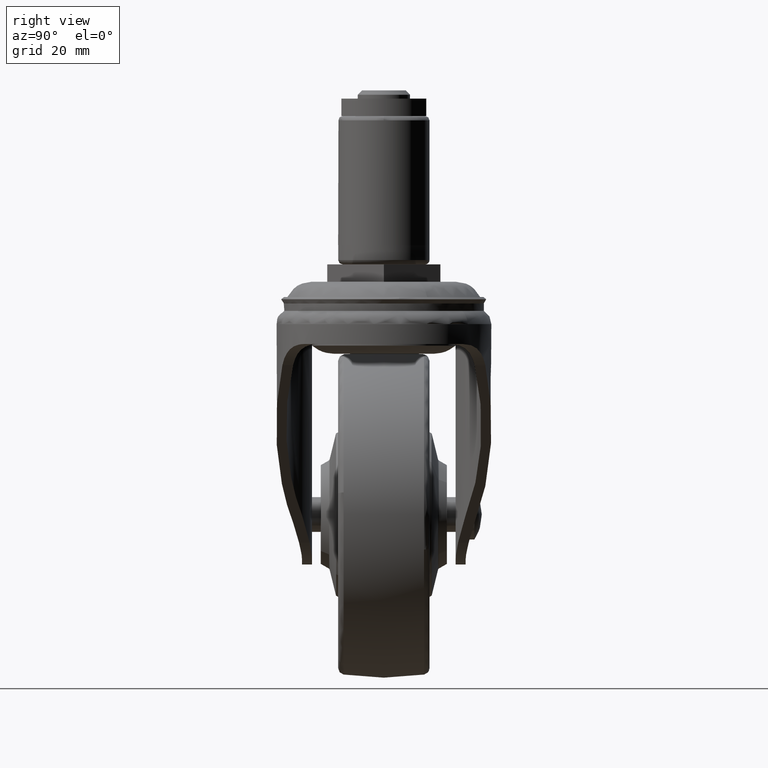
[diagram: clean part render]
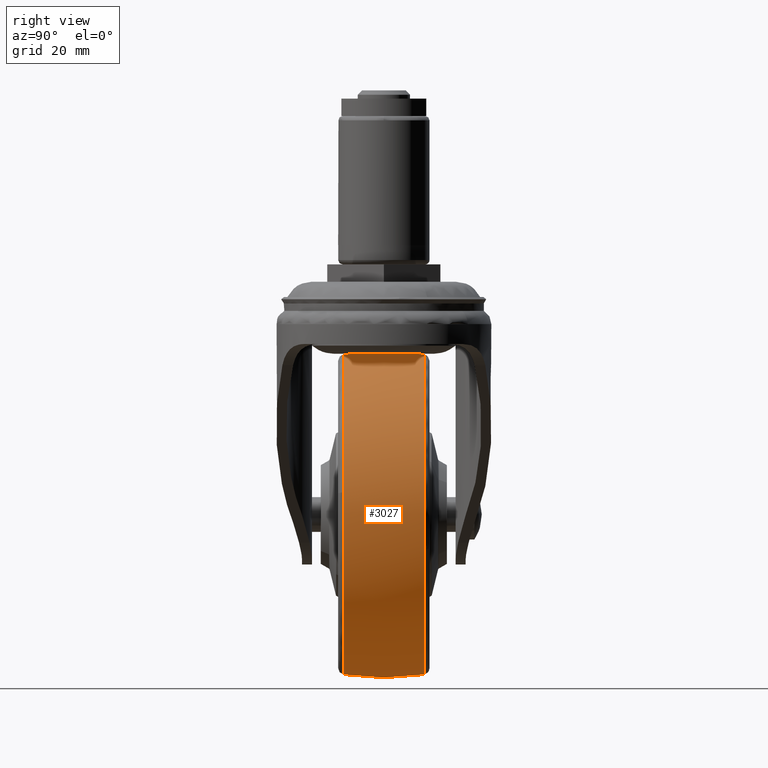
[diagram: same view with one face highlighted and labeled with its STEP entity id]
A machine part, right view. The second image highlights one B-rep face of the part: STEP entity #3027.
In plain terms, the highlighted face is a freeform B-spline surface patch.
Its self-contained STEP definition (entity closure, byte-faithful):
#2131=CARTESIAN_POINT('',(-25.0,9.230738802576987,-20.714632437744690));
#2132=VERTEX_POINT('',#2131);
#2148=CARTESIAN_POINT('',(10.894347438131330,9.230757517157327,-65.549100782697806));
#2149=VERTEX_POINT('',#2148);
#2150=CARTESIAN_POINT('',(10.894347438131330,9.230757517157327,-65.549100782697806));
#2151=CARTESIAN_POINT('',(11.269890144337669,9.230756821413303,-63.874631042021349));
#2152=CARTESIAN_POINT('',(11.798935733296609,9.230755372232428,-60.387977126985241));
#2153=CARTESIAN_POINT('',(11.837217125412581,9.230753153756846,-55.053904648306471));
#2154=CARTESIAN_POINT('',(11.034082735123629,9.230750778103399,-49.345705699720909));
#2155=CARTESIAN_POINT('',(9.426692383933128,9.230748619474015,-44.162911242943807));
#2156=CARTESIAN_POINT('',(7.082430036730425,9.230746584770618,-39.281380990788293));
#2157=CARTESIAN_POINT('',(4.675508722658678,9.230745054389011,-35.612677375403379));
#2158=CARTESIAN_POINT('',(1.633588525755232,9.230743545406812,-31.998276833723480));
#2159=CARTESIAN_POINT('',(-1.695800172316997,9.230742243321350,-28.882609810199131));
#2160=CARTESIAN_POINT('',(-5.777374722620208,9.230741043423823,-26.016011578779921));
#2161=CARTESIAN_POINT('',(-9.660833797860470,9.230740189476432,-23.980294937363212));
#2162=CARTESIAN_POINT('',(-13.423955144103500,9.230739573835598,-22.517000386645861));
#2163=CARTESIAN_POINT('',(-18.393281832847869,9.230738993748702,-21.144604257156480));
#2164=CARTESIAN_POINT('',(-22.340043514192111,9.230738807368528,-20.714209867883760));
#2165=CARTESIAN_POINT('',(-25.0,9.230738802576987,-20.714632437744690));
#2166=B_SPLINE_CURVE_WITH_KNOTS('',3,(#2150,#2151,#2152,#2153,#2154,#2155,#2156,#2157,#2158,#2159,#2160,#2161,#2162,#2163,#2164,#2165),.UNSPECIFIED.,.F.,.U.,(4,1,1,1,1,1,1,1,1,1,1,1,1,4),(0.000000040092502,5.148197585844244,10.553861740033570,15.959521934798090,22.394824686409130,26.770824825621059,32.176496901851237,35.522783241854633,40.928449712298637,45.819263547831092,50.452689315289597,54.056461035528962,57.917627260555513,65.897384638438126),.UNSPECIFIED.);
#2167=EDGE_CURVE('',#2149,#2132,#2166,.T.);
#2224=CARTESIAN_POINT('',(-25.0,9.230769230769241,-94.286014824608401));
#2225=VERTEX_POINT('',#2224);
#2226=CARTESIAN_POINT('',(-25.0,9.230769230769241,-94.286014824608401));
#2227=CARTESIAN_POINT('',(-22.283718620218512,9.230769238891483,-94.286521016585553));
#2228=CARTESIAN_POINT('',(-17.627533338174509,9.230769039136142,-93.767812294298110));
#2229=CARTESIAN_POINT('',(-11.245102315341811,9.230768243947543,-91.789028585724935));
#2230=CARTESIAN_POINT('',(-5.899806253236454,9.230767166301915,-89.130774744798941));
#2231=CARTESIAN_POINT('',(-1.374350978914402,9.230765836678135,-85.865623533622511));
#2232=CARTESIAN_POINT('',(2.486818183613340,9.230764308022854,-82.121216772231648));
#2233=CARTESIAN_POINT('',(5.203100864277729,9.230762887309552,-78.647390955648362));
#2234=CARTESIAN_POINT('',(7.359855120820316,9.230761438969589,-75.110352669078267));
#2235=CARTESIAN_POINT('',(9.342654356531476,9.230759768157368,-71.033586856754610));
#2236=CARTESIAN_POINT('',(10.413425354807110,9.230758398160761,-67.694740905863071));
#2237=CARTESIAN_POINT('',(10.894347438131330,9.230757517157327,-65.549100782697806));
#2238=B_SPLINE_CURVE_WITH_KNOTS('',3,(#2226,#2227,#2228,#2229,#2230,#2231,#2232,#2233,#2234,#2235,#2236,#2237),.UNSPECIFIED.,.F.,.U.,(4,1,1,1,1,1,1,1,1,4),(0.000000047919904,8.148728203206545,13.969258487616830,19.983811265025551,25.998320696372090,30.654731978818582,36.087241936118090,39.191527838840457,43.071870388966779,49.668462225115412),.UNSPECIFIED.);
#2239=EDGE_CURVE('',#2225,#2149,#2238,.T.);
#2241=CARTESIAN_POINT('',(-61.539658247174529,9.230744661824314,-53.252908088126937));
#2242=VERTEX_POINT('',#2241);
#2243=CARTESIAN_POINT('',(-61.539658247174529,9.230744661824314,-53.252908088126937));
#2244=CARTESIAN_POINT('',(-61.744946089440980,9.230745190284553,-55.018182517592400));
#2245=CARTESIAN_POINT('',(-61.884889819789549,9.230746229554304,-58.254880792590079));
#2246=CARTESIAN_POINT('',(-61.470031066895167,9.230747914178791,-62.930038187830966));
#2247=CARTESIAN_POINT('',(-60.455163371524108,9.230749829238745,-67.760928657419782));
#2248=CARTESIAN_POINT('',(-58.931864727367220,9.230751681365906,-71.950612904566242));
#2249=CARTESIAN_POINT('',(-56.952238955035611,9.230753569437971,-75.841579625838122));
#2250=CARTESIAN_POINT('',(-54.608992513770687,9.230755497683184,-79.529041696271321));
#2251=CARTESIAN_POINT('',(-51.196859726420989,9.230757852970362,-83.543441044741769));
#2252=CARTESIAN_POINT('',(-47.504907892624203,9.230760006720759,-86.705165183293957));
#2253=CARTESIAN_POINT('',(-43.884420686933623,9.230761897995537,-89.144545799437680));
#2254=CARTESIAN_POINT('',(-40.600731771041580,9.230763460524676,-90.899421307800367));
#2255=CARTESIAN_POINT('',(-36.242294536153267,9.230765335984753,-92.634307784918306));
#2256=CARTESIAN_POINT('',(-31.139302728015661,9.230767289249625,-93.939159994999429));
#2257=CARTESIAN_POINT('',(-27.100312168093431,9.230768606241922,-94.286187401243097));
#2258=CARTESIAN_POINT('',(-25.0,9.230769230769241,-94.286014824608401));
#2259=B_SPLINE_CURVE_WITH_KNOTS('',3,(#2243,#2244,#2245,#2246,#2247,#2248,#2249,#2250,#2251,#2252,#2253,#2254,#2255,#2256,#2257,#2258),.UNSPECIFIED.,.F.,.U.,(4,1,1,1,1,1,1,1,1,1,1,1,1,4),(0.000000053090453,5.331514319707694,9.693709210285931,14.055900528981960,20.114487270160289,23.022606630096579,27.142471634102169,33.200972064728802,38.774901304281762,41.683024689837332,46.287544723096190,49.922695526750402,55.738935545576673,62.039851829810097),.UNSPECIFIED.);
#2260=EDGE_CURVE('',#2242,#2225,#2259,.T.);
#2310=CARTESIAN_POINT('',(-11.542712536585171,-9.230769231475078,-91.736101388033063));
#2311=VERTEX_POINT('',#2310);
#2312=CARTESIAN_POINT('',(11.434805799117660,-9.230769222844193,-52.431615243701401));
#2313=VERTEX_POINT('',#2312);
#2314=CARTESIAN_POINT('',(-11.542712536585171,-9.230769231475078,-91.736101388033063));
#2315=CARTESIAN_POINT('',(-8.984456084173360,-9.230769231867772,-90.731069051682539));
#2316=CARTESIAN_POINT('',(-4.663789305783636,-9.230769232294493,-88.444351552620176));
#2317=CARTESIAN_POINT('',(0.405192347621890,-9.230769232210148,-84.305593660491553));
#2318=CARTESIAN_POINT('',(4.431746245468909,-9.230769231665446,-79.827266871739141));
#2319=CARTESIAN_POINT('',(7.321611585604882,-9.230769230767459,-75.351762392206936));
#2320=CARTESIAN_POINT('',(9.300237762128424,-9.230769229626667,-70.976437762101398));
#2321=CARTESIAN_POINT('',(10.550186859996209,-9.230769228503503,-67.211085356483167));
#2322=CARTESIAN_POINT('',(11.484436674725769,-9.230769227086951,-62.958767097509003));
#2323=CARTESIAN_POINT('',(11.918920109700061,-9.230769225196564,-57.914299077569723));
#2324=CARTESIAN_POINT('',(11.690328792021200,-9.230769223660818,-54.267597146898382));
#2325=CARTESIAN_POINT('',(11.434805799117660,-9.230769222844193,-52.431615243701401));
#2326=B_SPLINE_CURVE_WITH_KNOTS('',3,(#2314,#2315,#2316,#2317,#2318,#2319,#2320,#2321,#2322,#2323,#2324,#2325),.UNSPECIFIED.,.F.,.U.,(4,1,1,1,1,1,1,1,1,4),(0.000000045919393,8.245683583577844,14.573794408622961,19.559577932688789,26.271168637955238,30.489872283566910,33.941575418991903,38.160314295004888,43.529626946522463,49.090651230290277),.UNSPECIFIED.);
#2327=EDGE_CURVE('',#2311,#2313,#2326,.T.);
#2409=CARTESIAN_POINT('',(-25.0,-9.230769230769241,-94.286014824608401));
#2410=VERTEX_POINT('',#2409);
#2411=CARTESIAN_POINT('',(-25.0,-9.230769230769241,-94.286014824608401));
#2412=CARTESIAN_POINT('',(-23.134336403735741,-9.230769230769203,-94.286139146662109));
#2413=CARTESIAN_POINT('',(-20.264146277764421,-9.230769230829811,-94.067153206247838));
#2414=CARTESIAN_POINT('',(-15.753349299927461,-9.230769231073998,-93.185065595045486));
#2415=CARTESIAN_POINT('',(-13.145451189090830,-9.230769231300672,-92.366190146516701));
#2416=CARTESIAN_POINT('',(-11.542712536585171,-9.230769231475078,-91.736101388033063));
#2417=B_SPLINE_CURVE_WITH_KNOTS('',3,(#2411,#2412,#2413,#2414,#2415,#2416),.UNSPECIFIED.,.F.,.U.,(4,1,1,4),(3.728116E-009,5.596970303587813,8.610710843504936,13.777137484982189),.UNSPECIFIED.);
#2418=EDGE_CURVE('',#2410,#2311,#2417,.T.);
#2490=CARTESIAN_POINT('',(-25.0,-9.230768354899340,-20.714637039019070));
#2491=VERTEX_POINT('',#2490);
#2492=CARTESIAN_POINT('',(11.434805799117660,-9.230769222844193,-52.431615243701401));
#2493=CARTESIAN_POINT('',(11.094821819267841,-9.230769214716093,-49.984873799266353));
#2494=CARTESIAN_POINT('',(10.261737145172040,-9.230769194833840,-46.567762291707218));
#2495=CARTESIAN_POINT('',(8.343237159831594,-9.230769149089605,-41.787543976021567));
#2496=CARTESIAN_POINT('',(6.139255044698411,-9.230769096556744,-37.662968840583069));
#2497=CARTESIAN_POINT('',(2.813323135793692,-9.230769017305429,-33.187078620962879));
#2498=CARTESIAN_POINT('',(-0.785990312384498,-9.230768931558099,-29.681413384970060));
#2499=CARTESIAN_POINT('',(-4.397278575110104,-9.230768845536041,-26.941132944383909));
#2500=CARTESIAN_POINT('',(-8.341215123129564,-9.230768751597962,-24.561792873575161));
#2501=CARTESIAN_POINT('',(-13.603865566959620,-9.230768626264291,-22.335889340353521));
#2502=CARTESIAN_POINT('',(-19.373397029812320,-9.230768488872773,-20.988600200128960));
#2503=CARTESIAN_POINT('',(-23.284574767486511,-9.230768395743763,-20.714581851496341));
#2504=CARTESIAN_POINT('',(-25.0,-9.230768354899340,-20.714637039019070));
#2505=B_SPLINE_CURVE_WITH_KNOTS('',3,(#2492,#2493,#2494,#2495,#2496,#2497,#2498,#2499,#2500,#2501,#2502,#2503,#2504),.UNSPECIFIED.,.F.,.U.,(4,1,1,1,1,1,1,1,1,1,4),(0.000000053049405,7.410635223413813,10.498430600194061,15.438869345142120,21.408593855189181,27.172391906882162,30.466000598471560,34.994768313714509,40.964470631141779,47.551720555755963,52.698005119841689),.UNSPECIFIED.);
#2506=EDGE_CURVE('',#2313,#2491,#2505,.T.);
#2508=CARTESIAN_POINT('',(-61.539653784651222,-9.230773243894543,-53.252908239996842));
#2509=VERTEX_POINT('',#2508);
#2526=CARTESIAN_POINT('',(-61.539653784651222,-9.230773243894543,-53.252908239996842));
#2527=CARTESIAN_POINT('',(-61.744928888561880,-9.230773157574536,-55.018182040450363));
#2528=CARTESIAN_POINT('',(-61.905962773573400,-9.230772962359499,-58.740397628466447));
#2529=CARTESIAN_POINT('',(-61.371849489802663,-9.230772668365056,-63.654483094544709));
#2530=CARTESIAN_POINT('',(-60.214720057368623,-9.230772350544964,-68.450564581328777));
#2531=CARTESIAN_POINT('',(-58.764965411563338,-9.230772069141997,-72.318443262149998));
#2532=CARTESIAN_POINT('',(-56.536482151201952,-9.230771725796506,-76.628441365522107));
#2533=CARTESIAN_POINT('',(-53.552275814443462,-9.230771344092982,-80.968684744725962));
#2534=CARTESIAN_POINT('',(-49.768234174942471,-9.230770947575888,-84.868250506561893));
#2535=CARTESIAN_POINT('',(-46.122100172636692,-9.230770616509808,-87.690718953484421));
#2536=CARTESIAN_POINT('',(-42.833362991405018,-9.230770344297470,-89.752529238155631));
#2537=CARTESIAN_POINT('',(-38.907299101313932,-9.230770048927591,-91.671303607110787));
#2538=CARTESIAN_POINT('',(-34.913190076927620,-9.230769782040683,-93.007346562001729));
#2539=CARTESIAN_POINT('',(-30.169919508795228,-9.230769496274782,-94.022355911226697));
#2540=CARTESIAN_POINT('',(-27.100317884807030,-9.230769332779159,-94.286215358217120));
#2541=CARTESIAN_POINT('',(-25.0,-9.230769230769241,-94.286014824608401));
#2542=B_SPLINE_CURVE_WITH_KNOTS('',3,(#2526,#2527,#2528,#2529,#2530,#2531,#2532,#2533,#2534,#2535,#2536,#2537,#2538,#2539,#2540,#2541),.UNSPECIFIED.,.F.,.U.,(4,1,1,1,1,1,1,1,1,1,1,1,1,4),(0.000000053164854,5.331514099191885,11.147772466705410,14.782930775833130,20.114486438028639,23.507316052465679,29.323529618391252,35.866785924006983,39.744253005543698,43.137080453843510,47.499262059058083,52.830812960913121,55.738933239523810,62.039849263056347),.UNSPECIFIED.);
#2543=EDGE_CURVE('',#2509,#2410,#2542,.T.);
#2949=CARTESIAN_POINT('',(-61.387840687560342,-10.163933144343375,-53.270542602484966));
#2950=CARTESIAN_POINT('',(-62.249186561240641,-5.118957251644313,-53.170418319010878));
#2951=CARTESIAN_POINT('',(-62.249186561240641,6.429243E-015,-53.170418319010878));
#2952=CARTESIAN_POINT('',(-62.249186561240634,5.118955146831095,-53.170418319010878));
#2953=CARTESIAN_POINT('',(-61.387841390778142,10.163929025536234,-53.270542520741763));
#2954=CARTESIAN_POINT('',(-61.632854345425592,-10.163933144343373,-55.378337993122379));
#2955=CARTESIAN_POINT('',(-62.499999999999993,-5.118957251644313,-55.328107872862802));
#2956=CARTESIAN_POINT('',(-62.499999999999993,6.429243E-015,-55.328107872862788));
#2957=CARTESIAN_POINT('',(-62.499999999999993,5.118955146831096,-55.328107872862788));
#2958=CARTESIAN_POINT('',(-61.632855053378421,10.163929025536232,-55.378337952113640));
#2959=CARTESIAN_POINT('',(-61.632854345425599,-10.163933144343371,-57.500326000000101));
#2960=CARTESIAN_POINT('',(-62.500000000000000,-5.118957251644312,-57.500326000000094));
#2961=CARTESIAN_POINT('',(-62.500000000000000,6.429243E-015,-57.500326000000094));
#2962=CARTESIAN_POINT('',(-62.500000000000000,5.118955146831095,-57.500326000000094));
#2963=CARTESIAN_POINT('',(-61.632855053378428,10.163929025536234,-57.500326000000094));
#2964=CARTESIAN_POINT('',(-61.632854345425599,-10.163933144343369,-94.133180345425686));
#2965=CARTESIAN_POINT('',(-62.500000000000007,-5.118957251644312,-95.000326000000086));
#2966=CARTESIAN_POINT('',(-62.500000000000000,6.429243E-015,-95.000326000000086));
#2967=CARTESIAN_POINT('',(-62.499999999999993,5.118955146831095,-95.000326000000101));
#2968=CARTESIAN_POINT('',(-61.632855053378414,10.163929025536232,-94.133181053378522));
#2969=CARTESIAN_POINT('',(-25.000000000000004,-10.163933144343371,-94.133180345425686));
#2970=CARTESIAN_POINT('',(-25.000000000000004,-5.118957251644312,-95.000326000000072));
#2971=CARTESIAN_POINT('',(-25.0,6.429243E-015,-95.000326000000086));
#2972=CARTESIAN_POINT('',(-25.0,5.118955146831095,-95.000326000000101));
#2973=CARTESIAN_POINT('',(-24.999999999999996,10.163929025536234,-94.133181053378522));
#2974=CARTESIAN_POINT('',(11.632854345425583,-10.163933144343369,-94.133180345425686));
#2975=CARTESIAN_POINT('',(12.499999999999995,-5.118957251644312,-95.000326000000086));
#2976=CARTESIAN_POINT('',(12.499999999999993,6.429243E-015,-95.000326000000086));
#2977=CARTESIAN_POINT('',(12.499999999999991,5.118955146831095,-95.000326000000101));
#2978=CARTESIAN_POINT('',(11.632855053378417,10.163929025536232,-94.133181053378522));
#2979=CARTESIAN_POINT('',(11.632854345425585,-10.163933144343371,-57.500326000000101));
#2980=CARTESIAN_POINT('',(12.499999999999993,-5.118957251644312,-57.500326000000094));
#2981=CARTESIAN_POINT('',(12.500000000000000,6.429243E-015,-57.500326000000094));
#2982=CARTESIAN_POINT('',(12.500000000000000,5.118955146831095,-57.500326000000094));
#2983=CARTESIAN_POINT('',(11.632855053378417,10.163929025536234,-57.500326000000094));
#2984=CARTESIAN_POINT('',(11.632854345425585,-10.163933144343369,-20.867471654574516));
#2985=CARTESIAN_POINT('',(12.499999999999995,-5.118957251644312,-20.000326000000101));
#2986=CARTESIAN_POINT('',(12.499999999999993,6.429243E-015,-20.000326000000101));
#2987=CARTESIAN_POINT('',(12.499999999999991,5.118955146831095,-20.000326000000104));
#2988=CARTESIAN_POINT('',(11.632855053378417,10.163929025536232,-20.867470946621669));
#2989=CARTESIAN_POINT('',(-25.000000000000004,-10.163933144343371,-20.867471654574501));
#2990=CARTESIAN_POINT('',(-25.000000000000004,-5.118957251644312,-20.000326000000101));
#2991=CARTESIAN_POINT('',(-25.0,6.429243E-015,-20.000326000000101));
#2992=CARTESIAN_POINT('',(-25.0,5.118955146831095,-20.000326000000097));
#2993=CARTESIAN_POINT('',(-24.999999999999996,10.163929025536234,-20.867470946621669));
#3001=(BOUNDED_SURFACE()B_SPLINE_SURFACE(2,2,((#2949,#2954,#2959,#2964,#2969,#2974,#2979,#2984,#2989),(#2950,#2955,#2960,#2965,#2970,#2975,#2980,#2985,#2990),(#2951,#2956,#2961,#2966,#2971,#2976,#2981,#2986,#2991),(#2952,#2957,#2962,#2967,#2972,#2977,#2982,#2987,#2992),(#2953,#2958,#2963,#2968,#2973,#2978,#2983,#2988,#2993)),.UNSPECIFIED.,.F.,.F.,.U.)B_SPLINE_SURFACE_WITH_KNOTS((3,2,3),(3,2,2,2,3),(0.0,10.428945590051660,20.857887000896479),(0.0,4.970561711536947,67.102596067501210,129.234630423465490,191.366664779429700),.UNSPECIFIED.)GEOMETRIC_REPRESENTATION_ITEM()RATIONAL_B_SPLINE_SURFACE(((0.915488203871946,0.934319101022523,0.956736834834791,0.676515103722635,0.956736834834791,0.676515103722635,0.956736834834791,0.676515103722635,0.956736834834791),(0.932570462807416,0.951752729052378,0.974588759388957,0.689138320632116,0.974588759388957,0.689138320632116,0.974588759388957,0.689138320632116,0.974588759388957),(0.956886126402807,0.976568547383107,1.0,0.707106781186548,1.0,0.707106781186548,1.0,0.707106781186548,1.0),(0.932570472551468,0.951752738996857,0.974588769572041,0.689138327832644,0.974588769572041,0.689138327832644,0.974588769572041,0.689138327832644,0.974588769572041),(0.915488217562745,0.934319114994932,0.956736849142449,0.676515113839677,0.956736849142449,0.676515113839677,0.956736849142449,0.676515113839677,0.956736849142449)))REPRESENTATION_ITEM('')SURFACE());
#3002=ORIENTED_EDGE('',*,*,#2260,.T.);
#3003=ORIENTED_EDGE('',*,*,#2239,.T.);
#3004=ORIENTED_EDGE('',*,*,#2167,.T.);
#3005=CARTESIAN_POINT('',(-25.0,-9.230768354899340,-20.714637039019070));
#3006=CARTESIAN_POINT('',(-24.999999999999989,-6.273761241205287,-20.254047336381170));
#3007=CARTESIAN_POINT('',(-25.000000000000039,-0.097705198875025,-19.761477716875412));
#3008=CARTESIAN_POINT('',(-24.999999999999979,6.082965677749727,-20.224296915222808));
#3009=CARTESIAN_POINT('',(-25.0,9.230738802576987,-20.714632437744690));
#3010=B_SPLINE_CURVE_WITH_KNOTS('',3,(#3005,#3006,#3007,#3008,#3009),.UNSPECIFIED.,.F.,.U.,(4,1,4),(1.986045E-009,8.977964706674385,18.535138130083141),.UNSPECIFIED.);
#3011=EDGE_CURVE('',#2491,#2132,#3010,.T.);
#3012=ORIENTED_EDGE('',*,*,#3011,.F.);
#3013=ORIENTED_EDGE('',*,*,#2506,.F.);
#3014=ORIENTED_EDGE('',*,*,#2327,.F.);
#3015=ORIENTED_EDGE('',*,*,#2418,.F.);
#3016=ORIENTED_EDGE('',*,*,#2543,.F.);
#3017=CARTESIAN_POINT('',(-61.539653784651222,-9.230773243894543,-53.252908239996842));
#3018=CARTESIAN_POINT('',(-62.085872510180501,-5.701452835060209,-53.189414919209902));
#3019=CARTESIAN_POINT('',(-62.486403149705133,0.488430582028462,-53.142856681464252));
#3020=CARTESIAN_POINT('',(-61.938046239454550,6.655282031125471,-53.206598741148731));
#3021=CARTESIAN_POINT('',(-61.539658247174529,9.230744661824314,-53.252908088126937));
#3022=B_SPLINE_CURVE_WITH_KNOTS('',3,(#3017,#3018,#3019,#3020,#3021),.UNSPECIFIED.,.F.,.U.,(4,1,4),(1.984969E-009,10.715630411649840,18.535149007857740),.UNSPECIFIED.);
#3023=EDGE_CURVE('',#2509,#2242,#3022,.T.);
#3024=ORIENTED_EDGE('',*,*,#3023,.T.);
#3025=EDGE_LOOP('',(#3002,#3003,#3004,#3012,#3013,#3014,#3015,#3016,#3024));
#3026=FACE_OUTER_BOUND('',#3025,.T.);
#3027=ADVANCED_FACE('',(#3026),#3001,.T.);